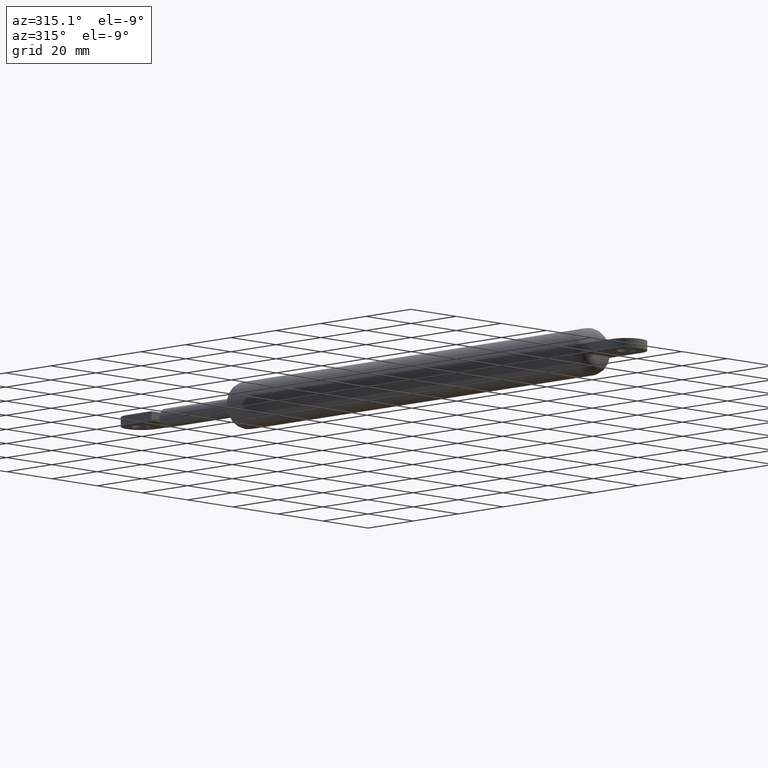
[diagram: clean part render]
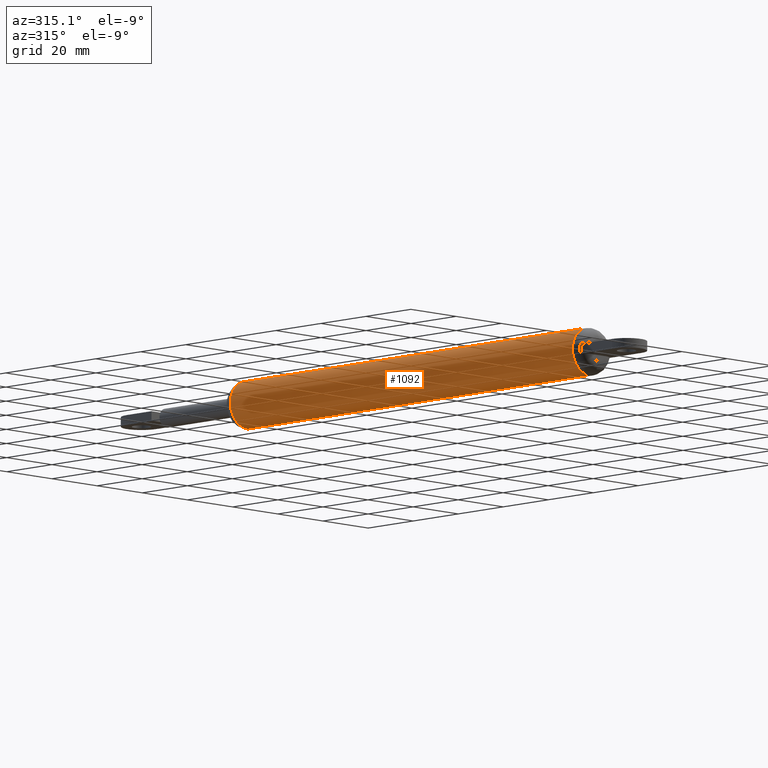
[diagram: same view with one face highlighted and labeled with its STEP entity id]
A machine part, auxiliary view. The second image highlights one B-rep face of the part: STEP entity #1092.
In plain terms, the highlighted cylindrical surface (edge-blend (fillet) strip) has radius 7.5 mm, axis along (-0, -1, -0).
Its self-contained STEP definition (entity closure, byte-faithful):
#177 = DIRECTION ( 'NONE',  ( 0.0000000000000000000, 0.0000000000000000000, -1.000000000000000000 ) ) ;
#178 = DIRECTION ( 'NONE',  ( -0.0000000000000000000, -1.000000000000000000, -0.0000000000000000000 ) ) ;
#179 = CARTESIAN_POINT ( 'NONE',  ( 0.0000000000000000000, 172.5000000000000300, 0.0000000000000000000 ) ) ;
#186 = CARTESIAN_POINT ( 'NONE',  ( 9.184850993605147900E-016, 172.5000000000000300, 7.500000000000000000 ) ) ;
#294 = DIRECTION ( 'NONE',  ( 0.0000000000000000000, 0.0000000000000000000, 1.000000000000000000 ) ) ;
#295 = DIRECTION ( 'NONE',  ( 0.0000000000000000000, 1.000000000000000000, 0.0000000000000000000 ) ) ;
#296 = CARTESIAN_POINT ( 'NONE',  ( 0.0000000000000000000, 16.49999999999998600, 0.0000000000000000000 ) ) ;
#316 = DIRECTION ( 'NONE',  ( 0.0000000000000000000, 0.0000000000000000000, 1.000000000000000000 ) ) ;
#317 = DIRECTION ( 'NONE',  ( -0.0000000000000000000, -1.000000000000000000, -0.0000000000000000000 ) ) ;
#318 = CARTESIAN_POINT ( 'NONE',  ( 0.0000000000000000000, 168.5000000000000000, 0.0000000000000000000 ) ) ;
#380 = DIRECTION ( 'NONE',  ( -0.0000000000000000000, -1.000000000000000000, -0.0000000000000000000 ) ) ;
#422 = CARTESIAN_POINT ( 'NONE',  ( 0.0000000000000000000, 172.5000000000000300, -7.500000000000000000 ) ) ;
#423 = DIRECTION ( 'NONE',  ( -0.0000000000000000000, -1.000000000000000000, -0.0000000000000000000 ) ) ;
#466 = CIRCLE ( 'NONE', #514, 7.500000000000000000 ) ;
#479 = CIRCLE ( 'NONE', #542, 7.500000000000000000 ) ;
#489 = VECTOR ( 'NONE', #380, 1000.000000000000000 ) ;
#508 = AXIS2_PLACEMENT_3D ( 'NONE', #179, #178, #177 ) ;
#514 = AXIS2_PLACEMENT_3D ( 'NONE', #296, #295, #294 ) ;
#536 = VECTOR ( 'NONE', #423, 1000.000000000000000 ) ;
#542 = AXIS2_PLACEMENT_3D ( 'NONE', #318, #317, #316 ) ;
#639 = VERTEX_POINT ( 'NONE', #1121 ) ;
#640 = VERTEX_POINT ( 'NONE', #1122 ) ;
#667 = ORIENTED_EDGE ( 'NONE', *, *, #1049, .T. ) ;
#673 = VERTEX_POINT ( 'NONE', #1128 ) ;
#686 = ORIENTED_EDGE ( 'NONE', *, *, #1005, .F. ) ;
#690 = ORIENTED_EDGE ( 'NONE', *, *, #1012, .T. ) ;
#768 = FACE_OUTER_BOUND ( 'NONE', #840, .T. ) ;
#769 = CYLINDRICAL_SURFACE ( 'NONE', #508, 7.500000000000000000 ) ;
#805 = VERTEX_POINT ( 'NONE', #1150 ) ;
#834 = LINE ( 'NONE', #422, #536 ) ;
#840 = EDGE_LOOP ( 'NONE', ( #686, #1194, #690, #667 ) ) ;
#856 = LINE ( 'NONE', #186, #489 ) ;
#1005 = EDGE_CURVE ( 'NONE', #639, #673, #856, .T. ) ;
#1012 = EDGE_CURVE ( 'NONE', #805, #640, #834, .T. ) ;
#1043 = EDGE_CURVE ( 'NONE', #639, #805, #479, .T. ) ;
#1049 = EDGE_CURVE ( 'NONE', #640, #673, #466, .T. ) ;
#1092 = ADVANCED_FACE ( 'NONE', ( #768 ), #769, .T. ) ;
#1121 = CARTESIAN_POINT ( 'NONE',  ( 9.184850993605147900E-016, 168.5000000000000000, 7.500000000000000000 ) ) ;
#1122 = CARTESIAN_POINT ( 'NONE',  ( 0.0000000000000000000, 16.49999999999998600, -7.500000000000000000 ) ) ;
#1128 = CARTESIAN_POINT ( 'NONE',  ( 9.184850993605147900E-016, 16.49999999999998600, 7.500000000000000000 ) ) ;
#1150 = CARTESIAN_POINT ( 'NONE',  ( 0.0000000000000000000, 168.5000000000000000, -7.500000000000000000 ) ) ;
#1194 = ORIENTED_EDGE ( 'NONE', *, *, #1043, .T. ) ;